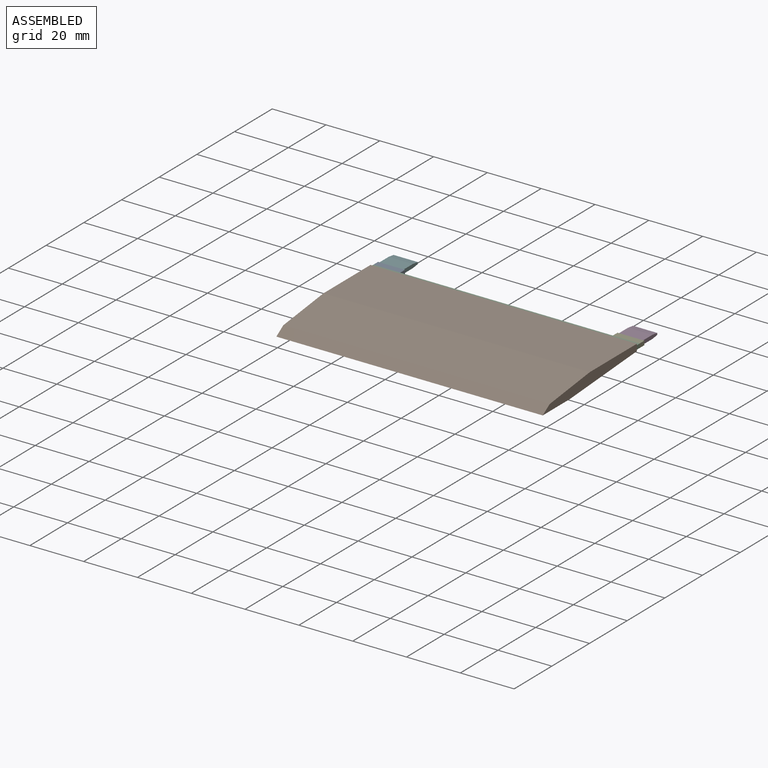
[diagram: assembled view]
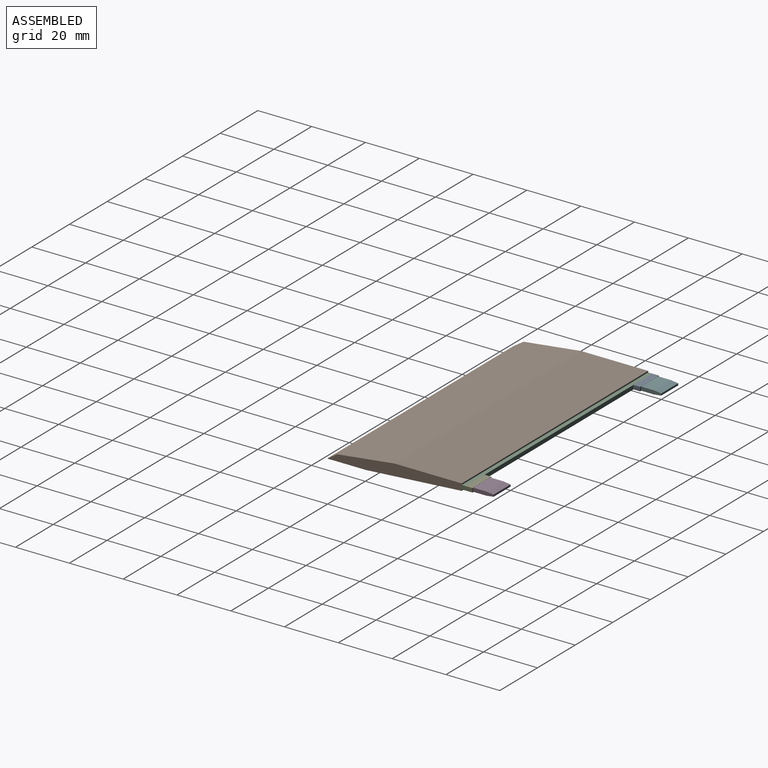
[diagram: assembled view, second angle]
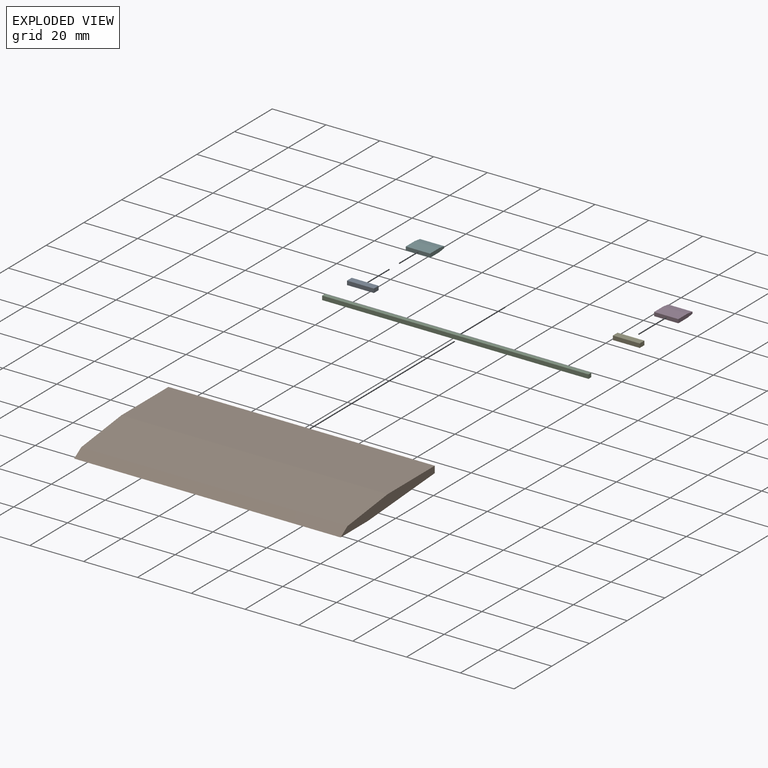
[diagram: exploded view]
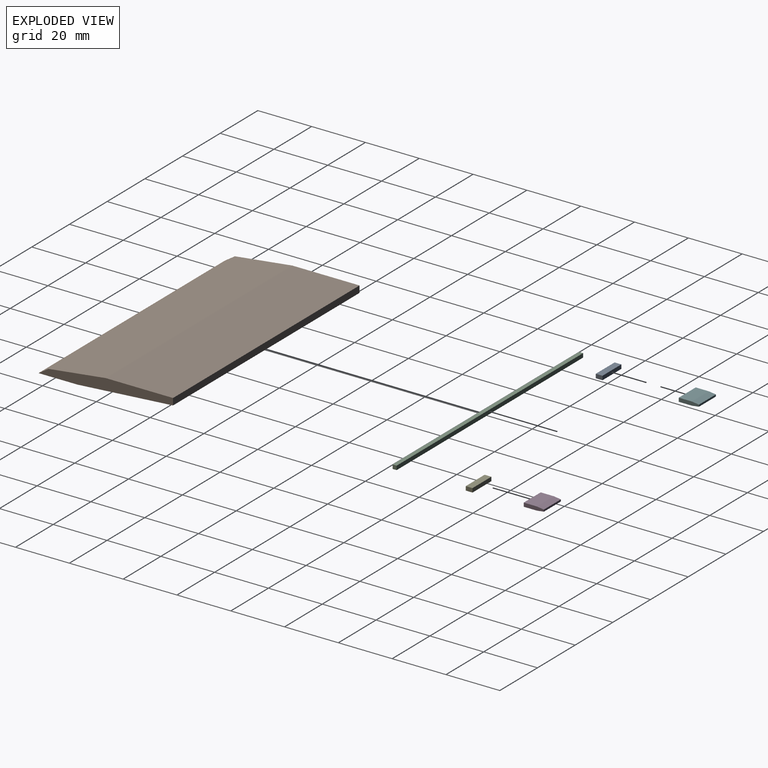
[diagram: exploded view, second angle]
ASSEMBLY  parts=6 mates=5
PART A: 6 faces, bbox 10x2.5x1.5 mm
  f0: plane 10x2.5mm, normal (0,0,1), area 25mm2, adj f1,f3,f4,f5
  f1: plane 2.5x1.5mm, normal (-1,0,0), area 3.8mm2, adj f0,f2,f4,f5
  f2: plane 10x2.5mm, normal (0,0,-1), area 25mm2, adj f1,f3,f4,f5
  f3: plane 2.5x1.5mm, normal (1,0,0), area 3.8mm2, adj f0,f2,f4,f5
  f4: plane 10x1.5mm, normal (0,-1,0), area 15mm2, adj f0,f1,f2,f3
  f5: plane 10x1.5mm, normal (0,1,0), area 15mm2, adj f0,f1,f2,f3
PART B: 8 faces, bbox 99x50x5 mm
  f0: plane 99x2.5mm, normal (0,1,0), area 247.5mm2, adj f1,f2,f3,f7
  f1: plane 50x5mm, normal (-1,0,0), area 164mm2, adj f0,f2,f4,f5,f6,f7
  f2: plane 99x25mm, normal (0,0,1), area 2475mm2, adj f0,f1,f3,f6
  f3: plane 50x5mm, normal (1,0,0), area 164mm2, adj f0,f2,f4,f5,f6,f7
  f4: plane 99x14.48mm, normal (0,0,-1), area 1433.9mm2, adj f1,f3,f5,f7
  f5: plane 99x3.68mm, normal (0,-0.55,0.84), area 435.4mm2, adj f1,f3,f4,f6
  f6: plane 99x21.32mm, normal (0,-0.12,0.99), area 2126.3mm2, adj f1,f2,f3,f5
  f7: plane 99x35.52mm, normal (0,0.07,-1), area 3524.8mm2, adj f0,f1,f3,f4
PART C: 6 faces, bbox 99x1.5x1.5 mm
  f0: plane 99x1.5mm, normal (0,1,0), area 148.5mm2, adj f1,f3,f4,f5
  f1: plane 1.5x1.5mm, normal (-1,0,0), area 2.2mm2, adj f0,f2,f4,f5
  f2: plane 99x1.5mm, normal (0,-1,0), area 148.5mm2, adj f1,f3,f4,f5
  f3: plane 1.5x1.5mm, normal (1,0,0), area 2.2mm2, adj f0,f2,f4,f5
  f4: plane 99x1.5mm, normal (0,0,1), area 148.5mm2, adj f0,f1,f2,f3
  f5: plane 99x1.5mm, normal (0,0,-1), area 148.5mm2, adj f0,f1,f2,f3
PART D: 8 faces, bbox 1.4x7.5x9 mm
  f0: plane 9x0.7mm, normal (0,-1,0), area 6.3mm2, adj f2,f4,f6,f7
  f1: plane 9x4.87mm, normal (-1,0,0), area 43.8mm2, adj f2,f4,f5,f7
  f2: plane 7.5x1.4mm, normal (0,0,-1), area 9.6mm2, adj f0,f1,f3,f5,f6,f7
  f3: plane 9x4.87mm, normal (1,0,0), area 43.8mm2, adj f2,f4,f5,f6
  f4: plane 7.5x1.4mm, normal (0,0,1), area 9.6mm2, adj f0,f1,f3,f5,f6,f7
  f5: plane 9x1.4mm, normal (0,1,0), area 12.6mm2, adj f1,f2,f3,f4
  f6: plane 9x2.63mm, normal (0.99,-0.13,0), area 23.9mm2, adj f0,f2,f3,f4
  f7: plane 9x2.63mm, normal (-0.99,-0.13,0), area 23.9mm2, adj f0,f1,f2,f4
PART E: same geometry as A
PART F: same geometry as D
PLACE A rot(axis=(0,1,0),180deg) t=(-52.69,17.26,-4.19)mm
PLACE B t=(-13.19,-11.74,-8.69)mm
PLACE C rot(axis=(1,0,0),180deg) t=(-62.69,14.76,-4.19)mm
PLACE D rot(axis=(0.71,0,-0.71),180deg) t=(26.81,17.26,-4.24)mm
PLACE E t=(26.31,17.26,-5.69)mm
PLACE F rot(axis=(-0.71,0,-0.71),180deg) t=(-53.19,17.26,-5.64)mm
MATE parallel A.f4 <-> C.f2  axis (0,-1,0) through (-62.69,14.76,-4.94)mm
MATE planar C.f0 <-> B.f0  axis (0,-1,0) through (-13.19,13.26,-4.94)mm
MATE planar A.f5 <-> F.f5  axis (0,1,0) through (-57.69,17.26,-4.94)mm
MATE planar E.f5 <-> D.f5  axis (0,1,0) through (31.31,17.26,-4.94)mm
MATE parallel E.f4 <-> C.f2  axis (0,-1,0) through (36.31,14.76,-4.94)mm
